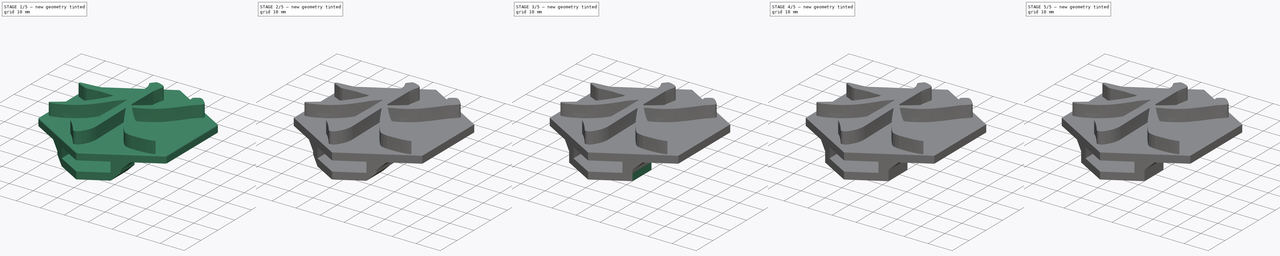
[diagram: build sequence overview — one tinted view per stage of 5, left to right]
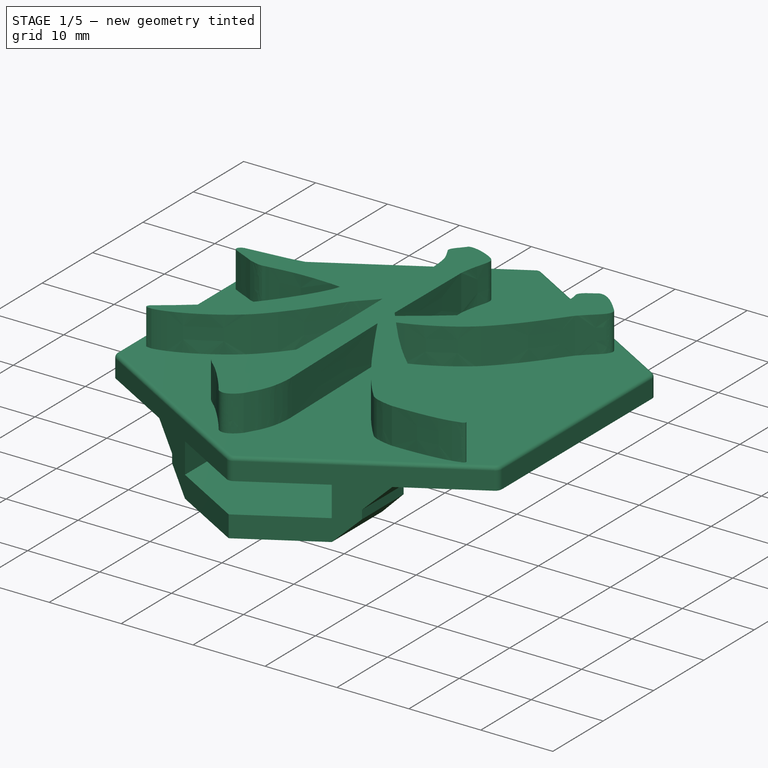
[diagram: stage 1 of 5 — iso view after this stage's code; geometry added in this stage tinted green]
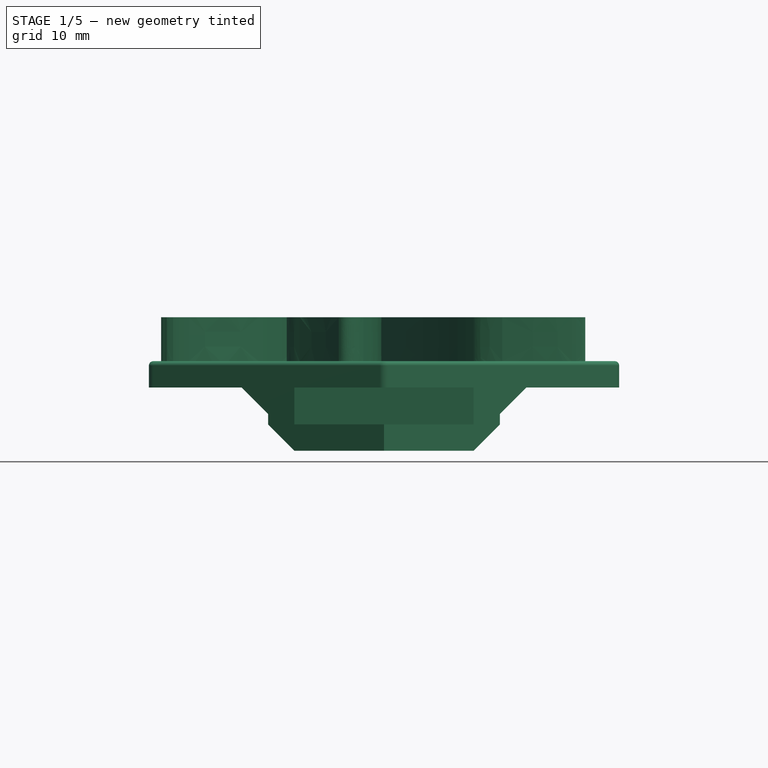
[diagram: stage 1 of 5 — front view after this stage's code; geometry added in this stage tinted green]
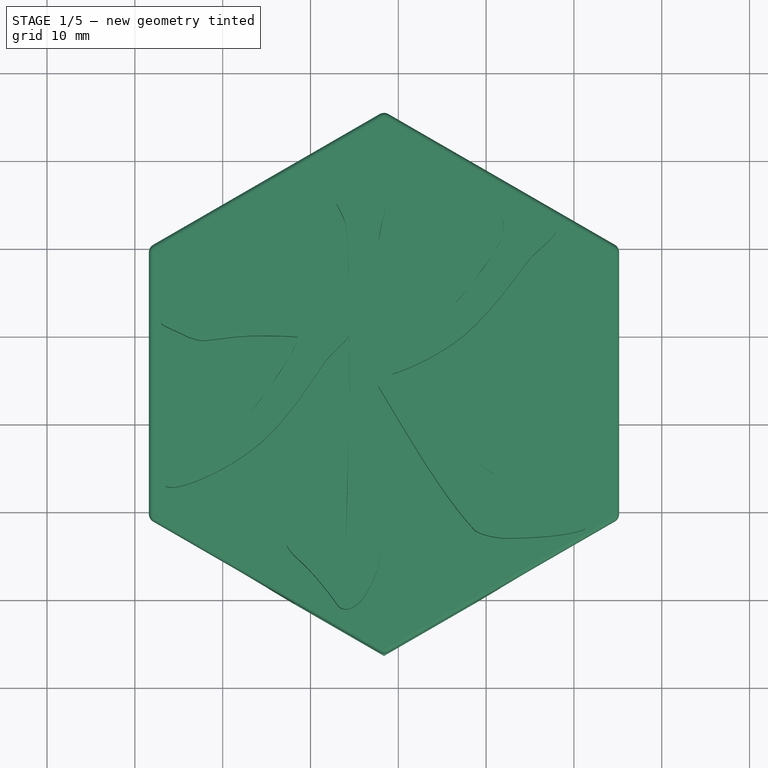
[diagram: stage 1 of 5 — top view after this stage's code; geometry added in this stage tinted green]
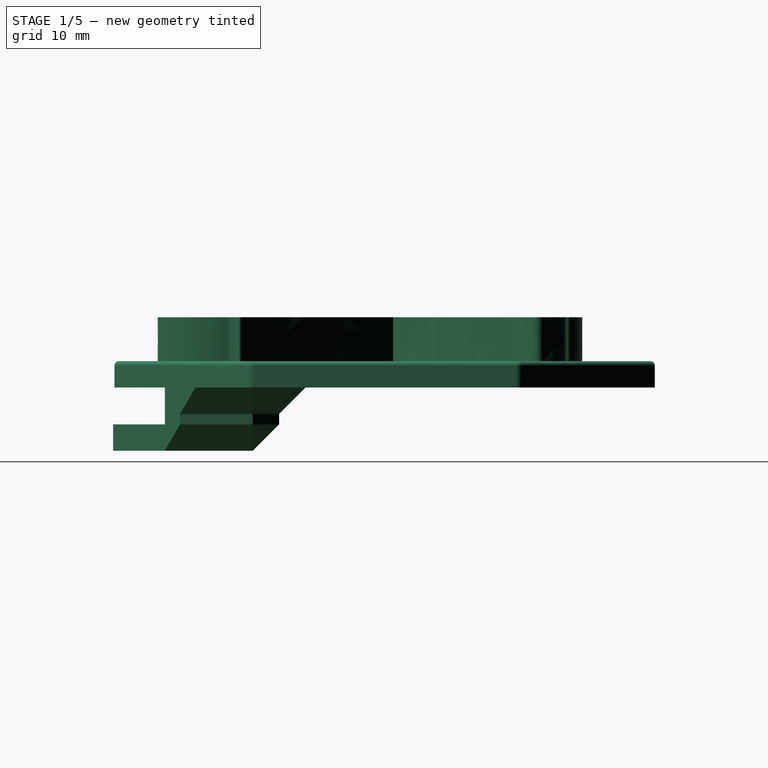
[diagram: stage 1 of 5 — right view after this stage's code; geometry added in this stage tinted green]
FCSTD DOCUMENT  (FreeCAD 0.16R6264 (Git))
Label: logo
License: All rights reserved
LicenseURL: http://en.wikipedia.org/wiki/All_rights_reserved
objects: Part::Feature×9, Part::Extrusion×6, PartDesign::Fillet×4, Sketcher::SketchObject×3, PartDesign::Pad×3, Part::MultiFuse×1, PartDesign::Chamfer×1
note: 30 computed .brp shape members not serialized (recipe doc carries the construction recipe); baked Part::Feature solids carry a one-line shape summary decoded from their .brp

FEATURE [Part::Feature] Pad003001  label="Pad004"
  shape: bbox 53.55 x 61.83 x 15.2 mm, 69 faces (baked)
FEATURE [PartDesign::Chamfer] Chamfer
  Base = -> Pad003001 [Edge66,Edge67,Edge68,Edge198,Edge193,Edge194,Edge195,Edge197]
  Size = 3
FEATURE [PartDesign::Fillet] Fillet
  Base = -> Chamfer [Edge34,Edge30,Edge26,Edge22,Edge42,Edge38]
  Radius = 0.5
FEATURE [PartDesign::Fillet] Fillet001
  Base = -> Fillet [Edge13,Edge52,Edge116,Edge28,Edge4,Edge1]
  Radius = 1
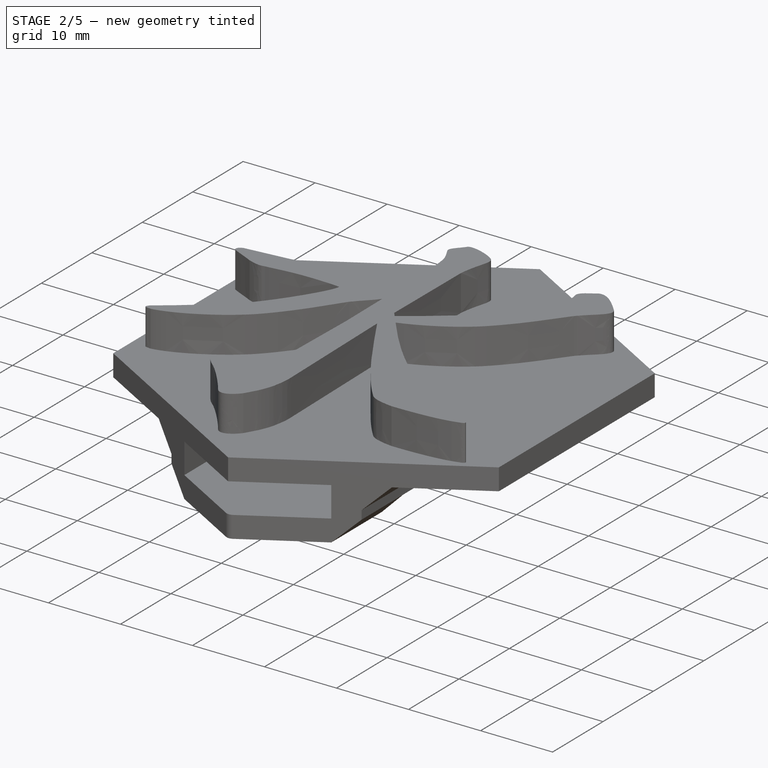
[diagram: stage 2 of 5 — iso view after this stage's code; geometry added in this stage tinted green]
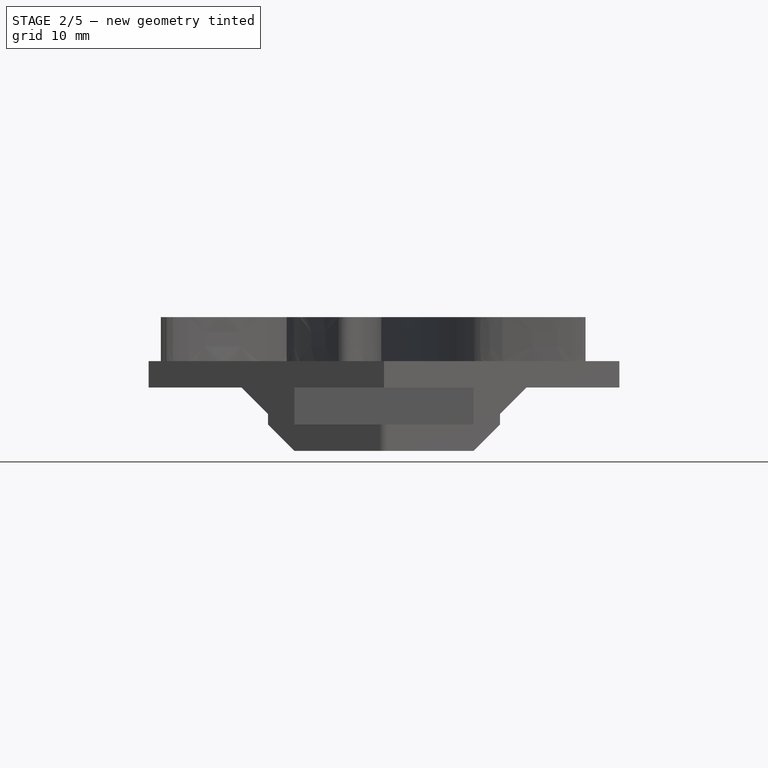
[diagram: stage 2 of 5 — front view after this stage's code; geometry added in this stage tinted green]
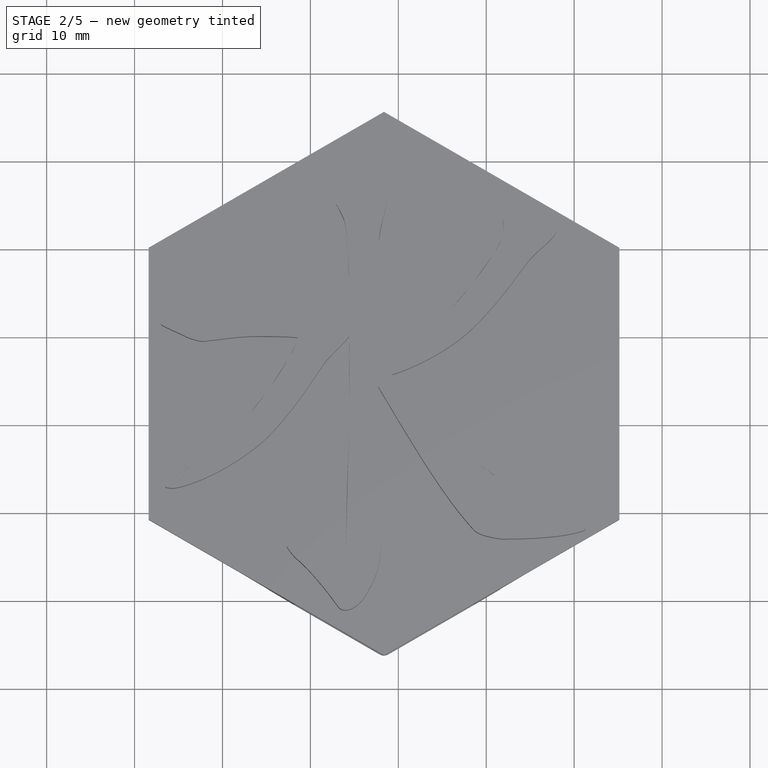
[diagram: stage 2 of 5 — top view after this stage's code; geometry added in this stage tinted green]
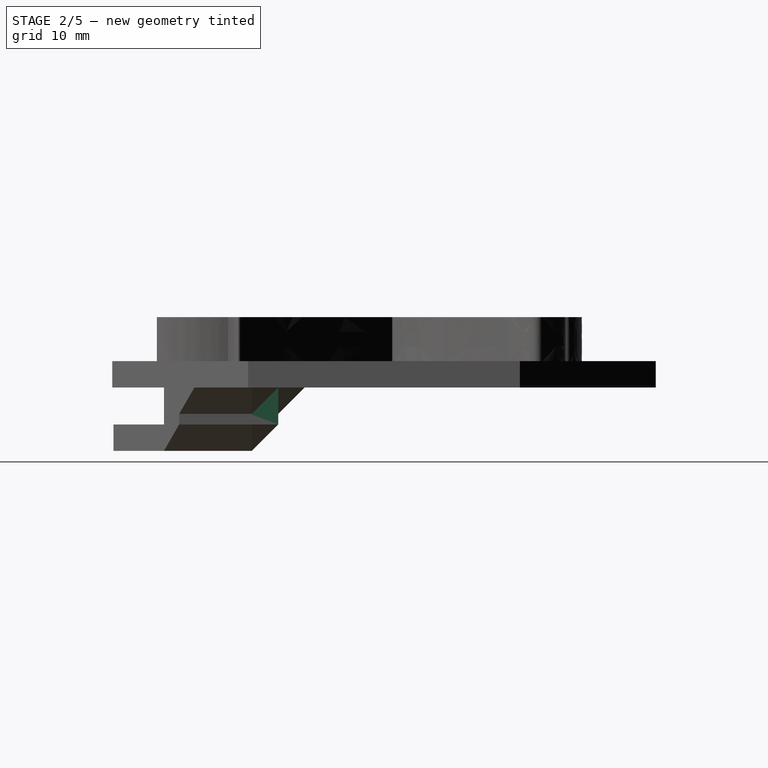
[diagram: stage 2 of 5 — right view after this stage's code; geometry added in this stage tinted green]
FEATURE [Part::Feature] Pad001
  shape: bbox 53.55 x 61.83 x 8 mm, 60 faces (baked)
FEATURE [Sketcher::SketchObject] Sketch001
  ExternalGeometry = -> [Pad001]
  Placement = pos=(0,0,-3) rot=(1,0,0;3.14159rad)
  Support = -> Pad001 [Face5]
  sketch-geometry (8):
    g0: LineSegment StartX=41.5707 StartY=48.7047 StartZ=0 EndX=38.5707 EndY=50.4367 EndZ=0
    g1: LineSegment StartX=38.5707 StartY=50.4367 StartZ=0 EndX=38.5707 EndY=40.4367 EndZ=0
    g2: LineSegment StartX=38.5707 StartY=40.4367 StartZ=0 EndX=18.1707 EndY=40.4367 EndZ=0
    g3: LineSegment StartX=18.1707 StartY=40.4367 StartZ=0 EndX=18.1707 EndY=50.4367 EndZ=0
    g4: LineSegment StartX=18.1707 StartY=50.4367 StartZ=0 EndX=15.1707 EndY=48.7047 EndZ=0
    g5: LineSegment StartX=15.1707 StartY=48.7047 StartZ=0 EndX=15.1707 EndY=37.4367 EndZ=0
    g6: LineSegment StartX=15.1707 StartY=37.4367 StartZ=0 EndX=41.5707 EndY=37.4367 EndZ=0
    g7: LineSegment StartX=41.5707 StartY=37.4367 StartZ=0 EndX=41.5707 EndY=48.7047 EndZ=0
  constraints (24):
    c: Coincident(g0,g1)
    c: Coincident(g1,g2)
    c: Horizontal(g2)
    c: Coincident(g2,g3)
    c: Coincident(g3,g4)
    c: Coincident(g4,g5)
    c: Coincident(g5,g6)
    c: Horizontal(g6)
    c: Coincident(g6,g7)
    c: Coincident(g7,g0)
    c: Vertical(g7)
    c: Vertical(g1)
    c: Vertical(g3)
    c: Vertical(g5)
    c: Distance(g2) = 20.4
    c: PointOnObject(g3,g-4)
    c: PointOnObject(g0,g-3)
    c: PointOnObject(g0,g-3)
    c: PointOnObject(g4,g-4)
    c: Equal(g3,g1)
    c: Equal(g5,g7)
    c: Distance(g2,g5) = 3
    c: Distance(g6,g2) = 3
    c: Distance(g3) = 10
FEATURE [PartDesign::Pad] Pad002
  Length = 4.2
  Length2 = 100
  Sketch = -> Sketch001
  Type = 0
FEATURE [PartDesign::Fillet] Fillet002
  Base = -> Fillet001 [Edge27]
  Radius = 0.5
FEATURE [PartDesign::Fillet] Fillet003
  Base = -> Fillet002 [Edge13]
  Radius = 1
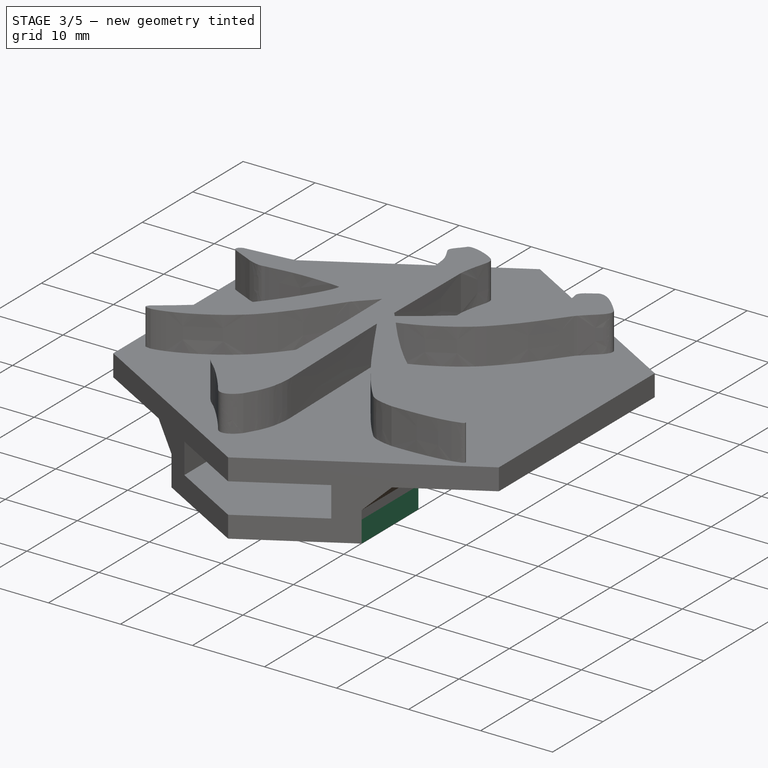
[diagram: stage 3 of 5 — iso view after this stage's code; geometry added in this stage tinted green]
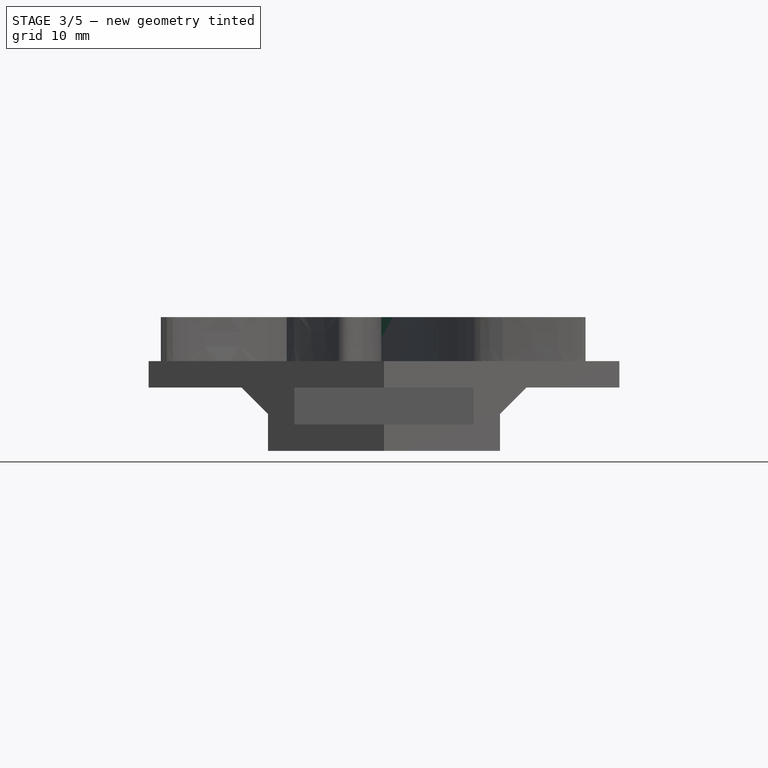
[diagram: stage 3 of 5 — front view after this stage's code; geometry added in this stage tinted green]
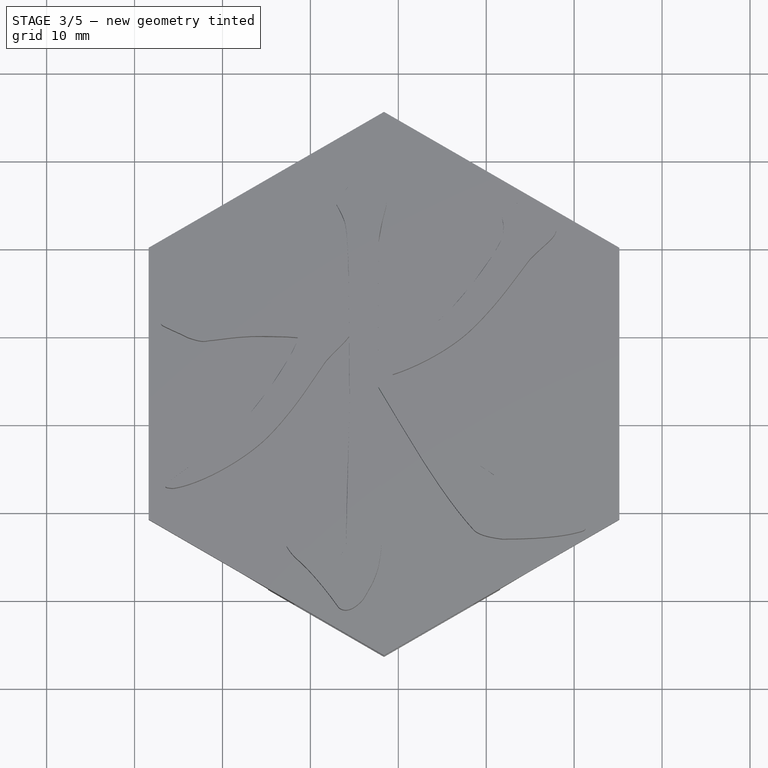
[diagram: stage 3 of 5 — top view after this stage's code; geometry added in this stage tinted green]
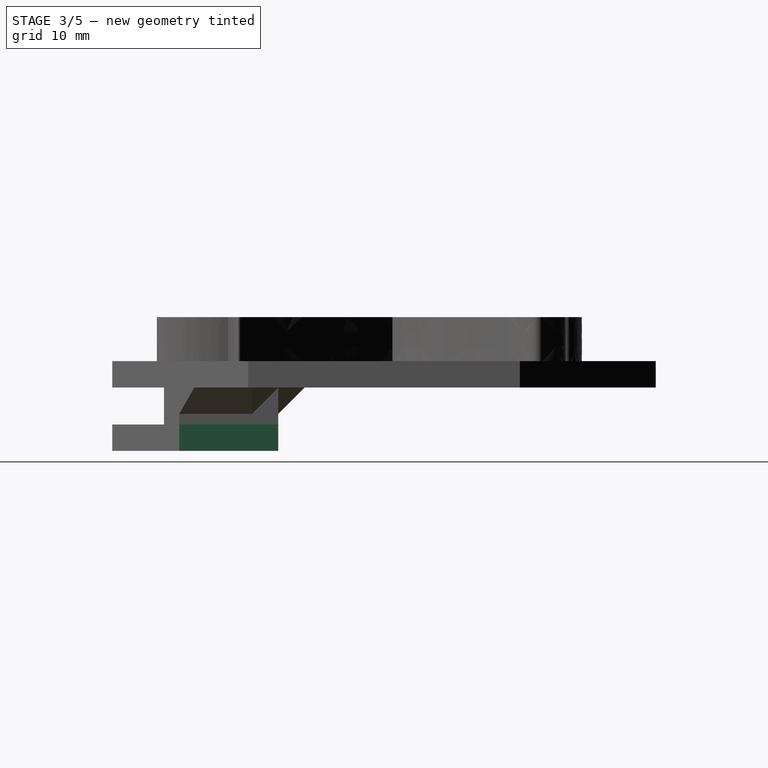
[diagram: stage 3 of 5 — right view after this stage's code; geometry added in this stage tinted green]
FEATURE [Part::Extrusion] Extrude005
  Base = -> Face005
  Dir = (0,0,5)
  Solid = false
FEATURE [Part::Feature] Fusion001
  shape: bbox 48.57 x 48.69 x 5 mm, 53 faces (baked)
FEATURE [Sketcher::SketchObject] Sketch
  Placement = pos=(0,0,0) rot=(1,0,0;3.14159rad)
  Support = -> Fusion001 [Face52]
  sketch-geometry (7):
    g0: LineSegment StartX=28.3707 StartY=-5.50507 StartZ=0 EndX=55.1442 EndY=9.95263 EndZ=0
    g1: LineSegment StartX=55.1442 StartY=9.95263 StartZ=0 EndX=55.1442 EndY=40.868 EndZ=0
    g2: LineSegment StartX=55.1442 StartY=40.868 StartZ=0 EndX=28.3707 EndY=56.3257 EndZ=0
    g3: LineSegment StartX=28.3707 StartY=56.3257 StartZ=0 EndX=1.5972 EndY=40.868 EndZ=0
    g4: LineSegment StartX=1.5972 StartY=40.868 StartZ=0 EndX=1.5972 EndY=9.95263 EndZ=0
    g5: LineSegment StartX=1.5972 StartY=9.95263 StartZ=0 EndX=28.3707 EndY=-5.50507 EndZ=0
    g6: Circle [constr] CenterX=28.3707 CenterY=25.4103 CenterZ=0 NormalX=0 NormalY=0 NormalZ=1 Radius=30.9154
  constraints (14):
    c: Coincident(g0,g1)
    c: Coincident(g1,g2)
    c: Coincident(g2,g3)
    c: Coincident(g3,g4)
    c: Coincident(g4,g5)
    c: Coincident(g5,g0)
    c: Equal(g0, g1-g5) x5
    c: PointOnObject(g0,g6)
    c: PointOnObject(g1,g6)
    c: PointOnObject(g2,g6)
    c: PointOnObject(g3,g6)
    c: PointOnObject(g4,g6)
    c: PointOnObject(g5,g6)
    c: Vertical(g4)
FEATURE [PartDesign::Pad] Pad
  Length = 3
  Length2 = 100
  Sketch = -> Sketch
  Type = 0
FEATURE [Sketcher::SketchObject] Sketch002
  ExternalGeometry = -> [Pad002]
  Placement = pos=(0,0,-7.2) rot=(1,0,0;3.14159rad)
  Support = -> Pad002 [Face67]
  sketch-geometry (5):
    g0: LineSegment StartX=28.3707 StartY=56.3257 StartZ=0 EndX=15.1707 EndY=48.7047 EndZ=0
    g1: LineSegment StartX=15.1707 StartY=48.7047 StartZ=0 EndX=15.1707 EndY=37.4367 EndZ=0
    g2: LineSegment StartX=15.1707 StartY=37.4367 StartZ=0 EndX=41.5707 EndY=37.4367 EndZ=0
    g3: LineSegment StartX=41.5707 StartY=37.4367 StartZ=0 EndX=41.5707 EndY=48.7047 EndZ=0
    g4: LineSegment StartX=41.5707 StartY=48.7047 StartZ=0 EndX=28.3707 EndY=56.3257 EndZ=0
  constraints (15):
    c: Coincident(g0,g1)
    c: Vertical(g1)
    c: Coincident(g1,g2)
    c: Horizontal(g2)
    c: Coincident(g2,g3)
    c: Vertical(g3)
    c: Coincident(g3,g4)
    c: Coincident(g0,g4)
    c: Coincident(g0,g-4)
    c: Coincident(g0,g-6)
    c: Coincident(g1,g-6)
    c: Coincident(g1,g-3)
    c: Coincident(g2,g-5)
    c: Coincident(g2,g-3)
    c: Coincident(g3,g-5)
FEATURE [PartDesign::Pad] Pad003
  Length = 3
  Length2 = 100
  Sketch = -> Sketch002
  Type = 0
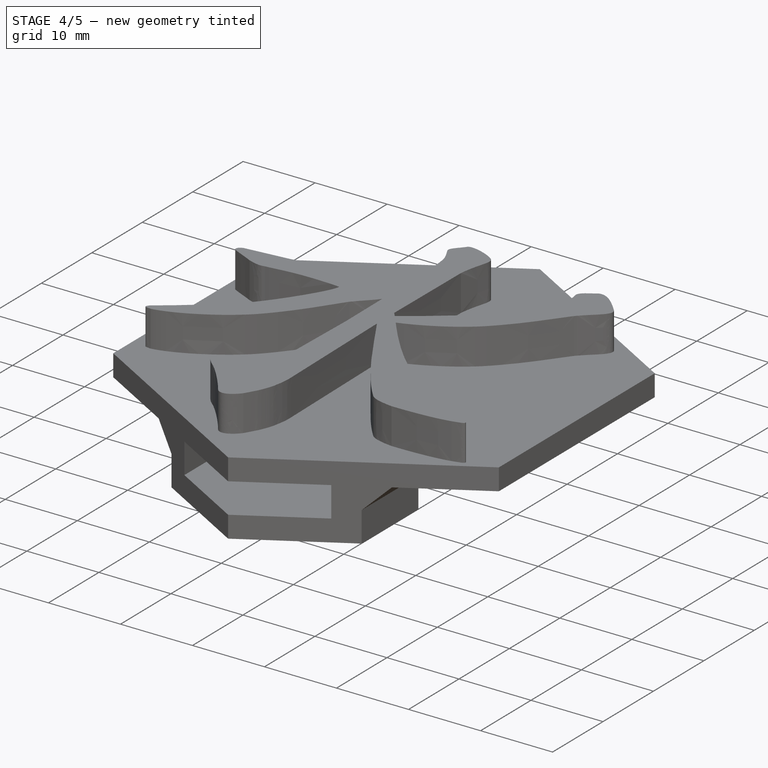
[diagram: stage 4 of 5 — iso view after this stage's code; geometry added in this stage tinted green]
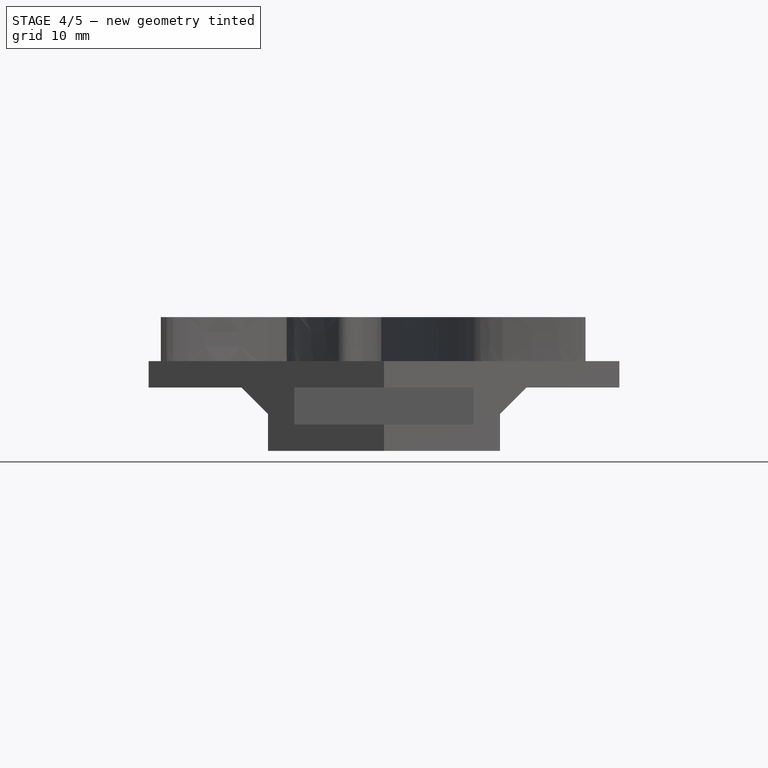
[diagram: stage 4 of 5 — front view after this stage's code; geometry added in this stage tinted green]
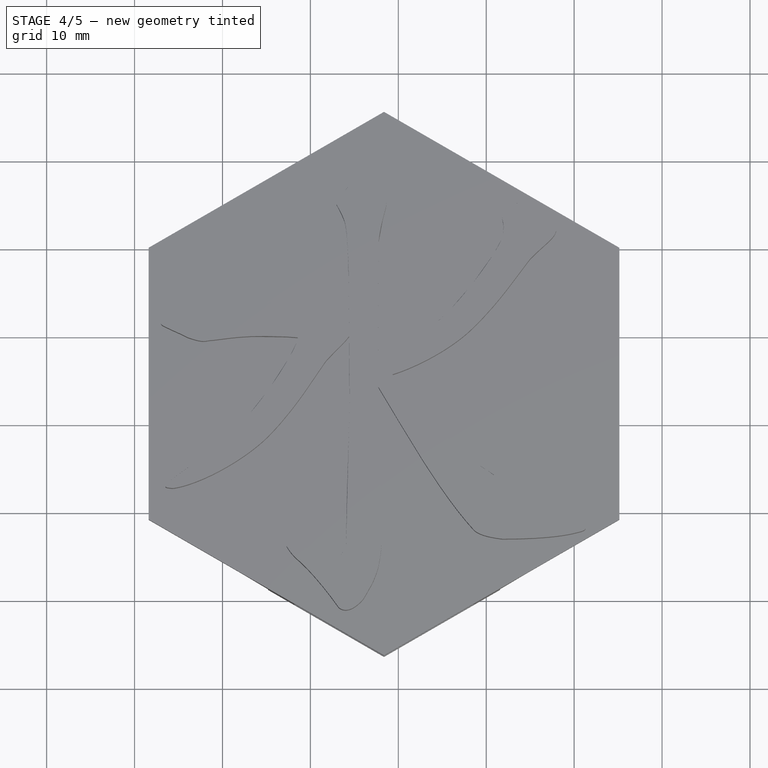
[diagram: stage 4 of 5 — top view after this stage's code; geometry added in this stage tinted green]
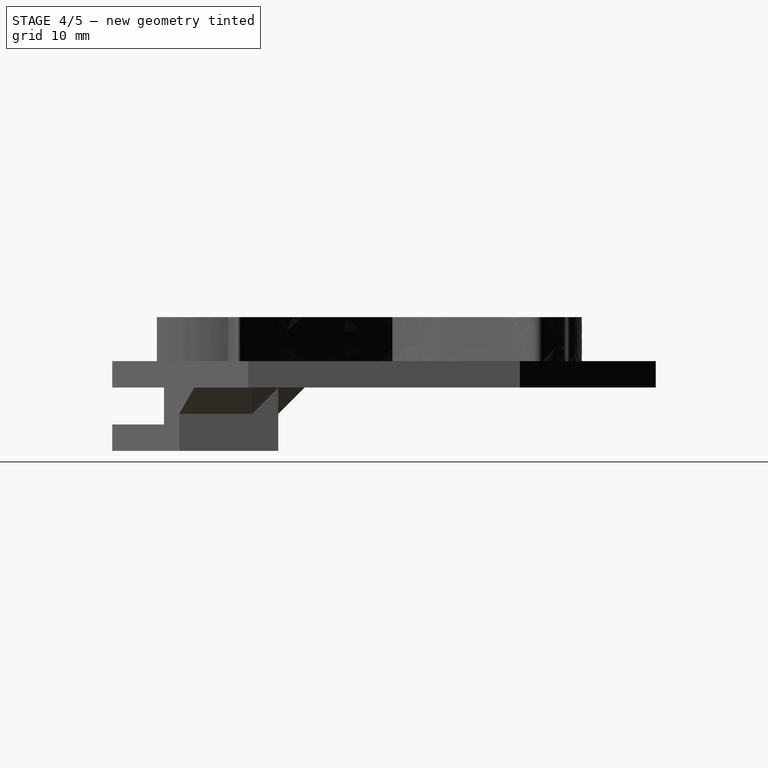
[diagram: stage 4 of 5 — right view after this stage's code; geometry added in this stage tinted green]
FEATURE [Part::Extrusion] Extrude002
  Base = -> Face002
  Dir = (0,0,5)
  Solid = false
FEATURE [Part::Extrusion] Extrude003
  Base = -> Face003
  Dir = (0,0,5)
  Solid = false
FEATURE [Part::Extrusion] Extrude004
  Base = -> Face004
  Dir = (0,0,5)
  Solid = false
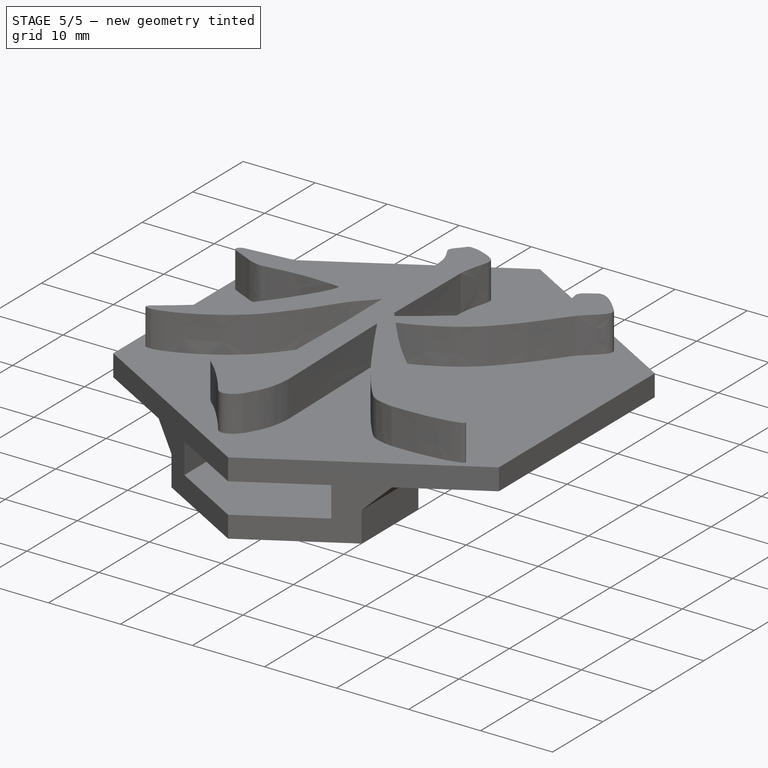
[diagram: stage 5 of 5 — iso view after this stage's code; geometry added in this stage tinted green]
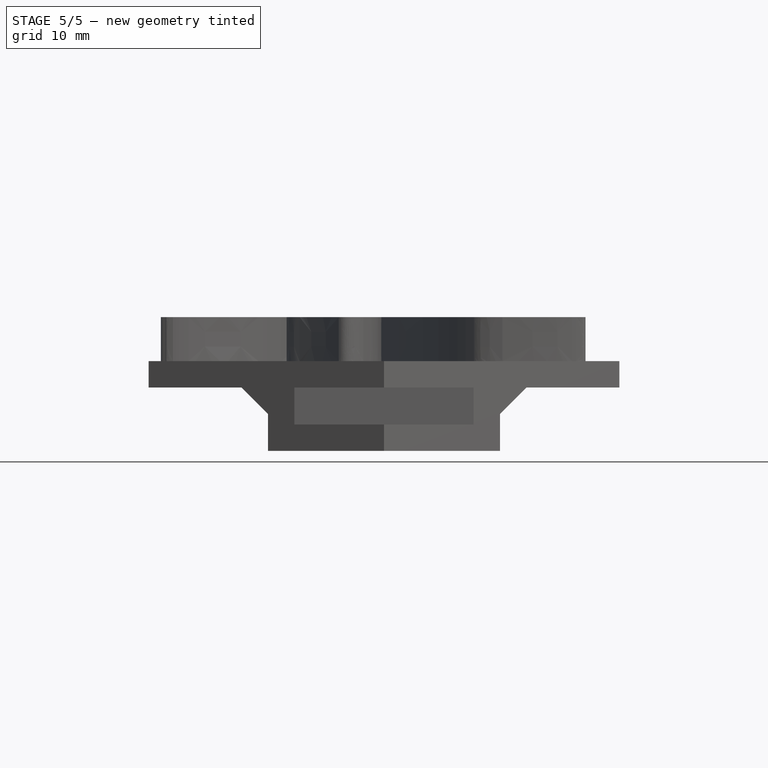
[diagram: stage 5 of 5 — front view after this stage's code; geometry added in this stage tinted green]
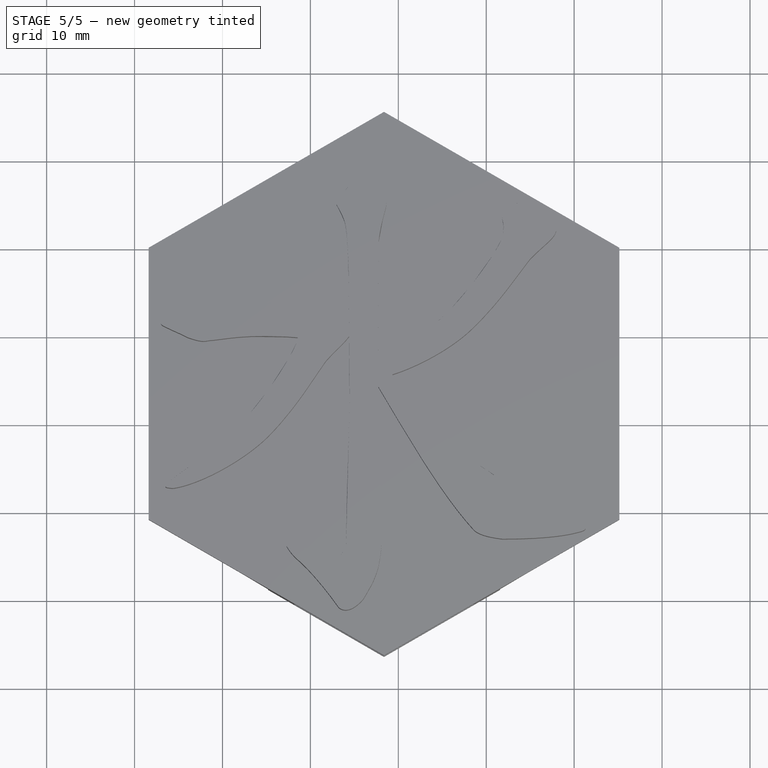
[diagram: stage 5 of 5 — top view after this stage's code; geometry added in this stage tinted green]
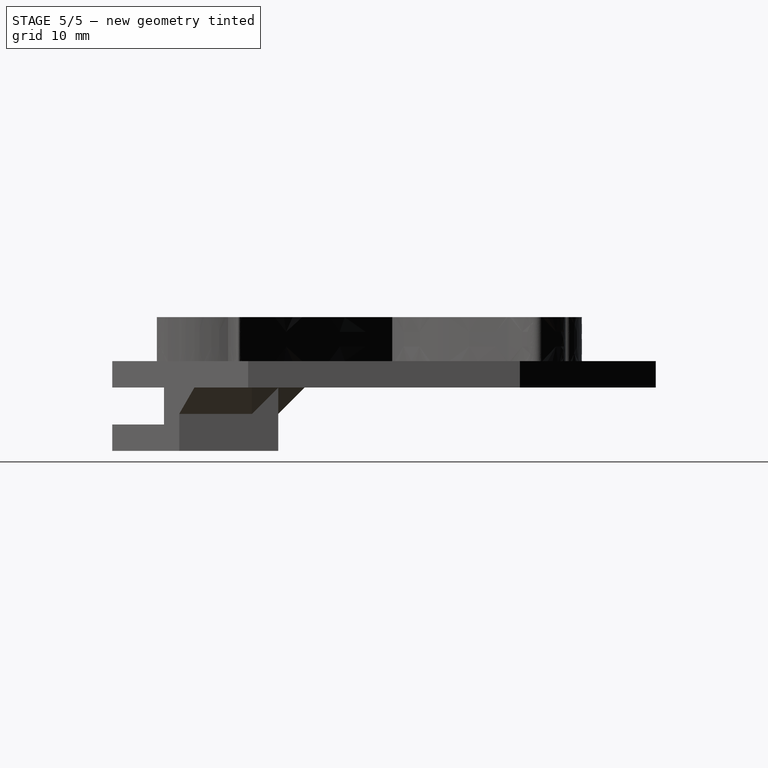
[diagram: stage 5 of 5 — right view after this stage's code; geometry added in this stage tinted green]
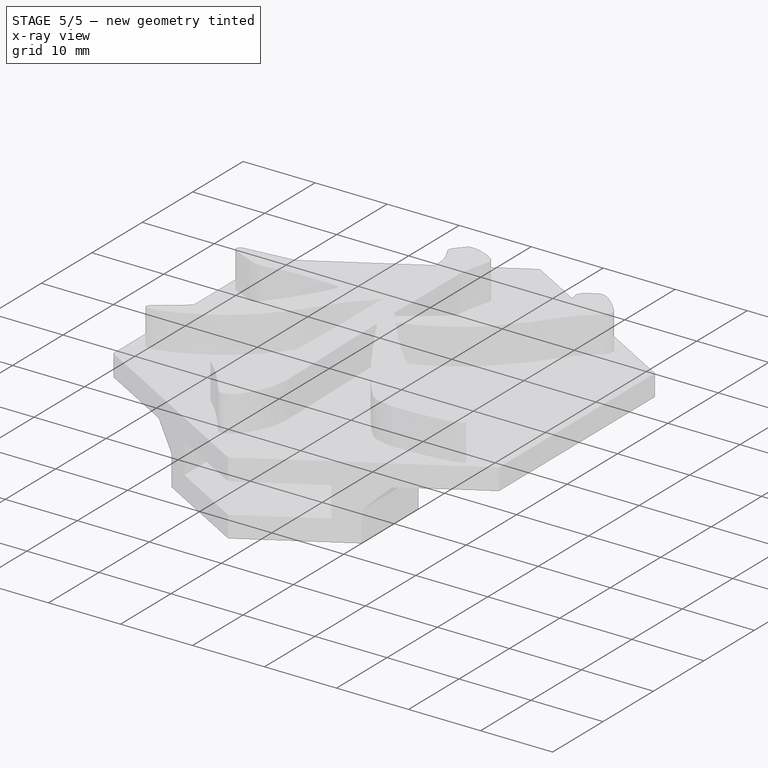
[diagram: stage 5 of 5 — x-ray composite at the iso view; earlier geometry ghosted, this stage's added geometry solid]
FEATURE [Part::Feature] Face
  shape: bbox 22.27 x 20.4 x 2e-07 mm, 1 faces, 0 solids (baked)
FEATURE [Part::Feature] Face001
  shape: bbox 6.057 x 46.34 x 2e-07 mm, 1 faces, 0 solids (baked)
FEATURE [Part::Feature] Face002
  shape: bbox 21.89 x 4.958 x 2e-07 mm, 1 faces, 0 solids (baked)
FEATURE [Part::Feature] Face003
  shape: bbox 21.47 x 21.18 x 2e-07 mm, 1 faces, 0 solids (baked)
FEATURE [Part::Feature] Face004
  shape: bbox 10.74 x 10.72 x 2e-07 mm, 1 faces, 0 solids (baked)
FEATURE [Part::Feature] Face005
  shape: bbox 25.92 x 22.54 x 2e-07 mm, 1 faces, 0 solids (baked)
FEATURE [Part::Extrusion] Extrude
  Base = -> Face
  Dir = (0,0,5)
  Solid = false
FEATURE [Part::Extrusion] Extrude001
  Base = -> Face001
  Dir = (0,0,5)
  Solid = false
FEATURE [Part::MultiFuse] Fusion
  Shapes = -> [Extrude005,Extrude001,Extrude003,Extrude002,Extrude,Extrude004]
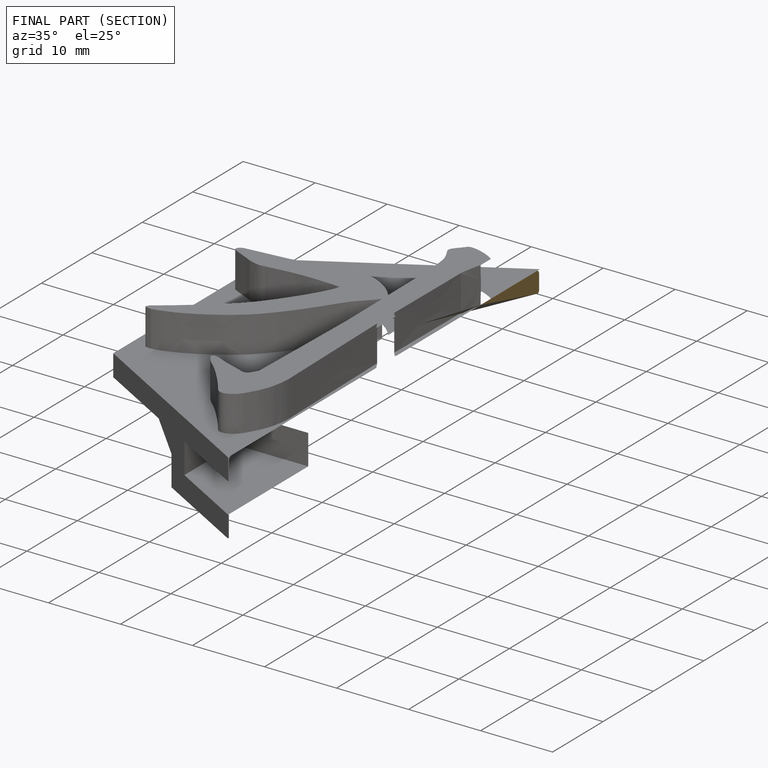
[diagram: finished part — half-section view (interior)]
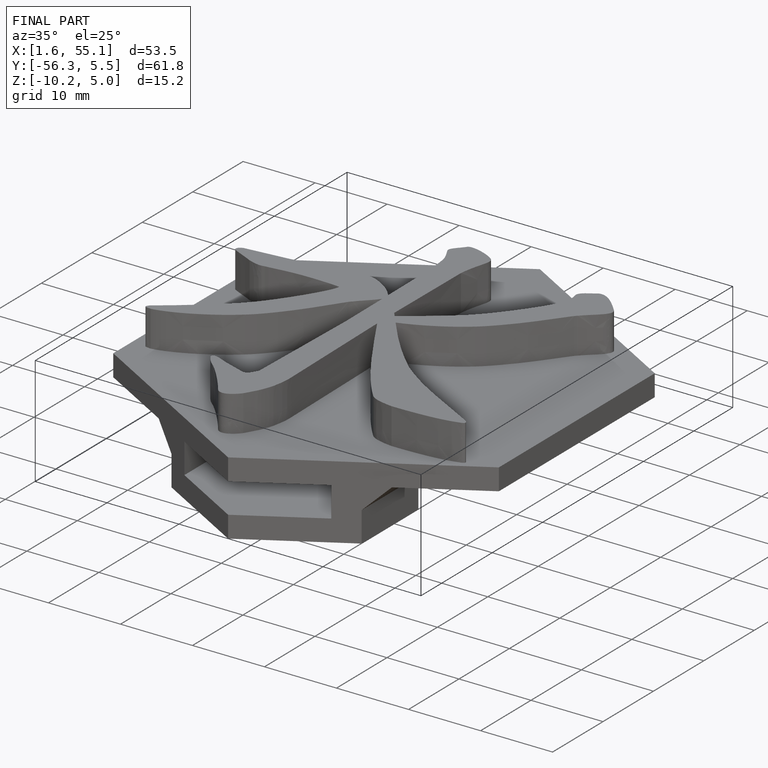
[diagram: finished part — iso view with bounding-box wireframe]
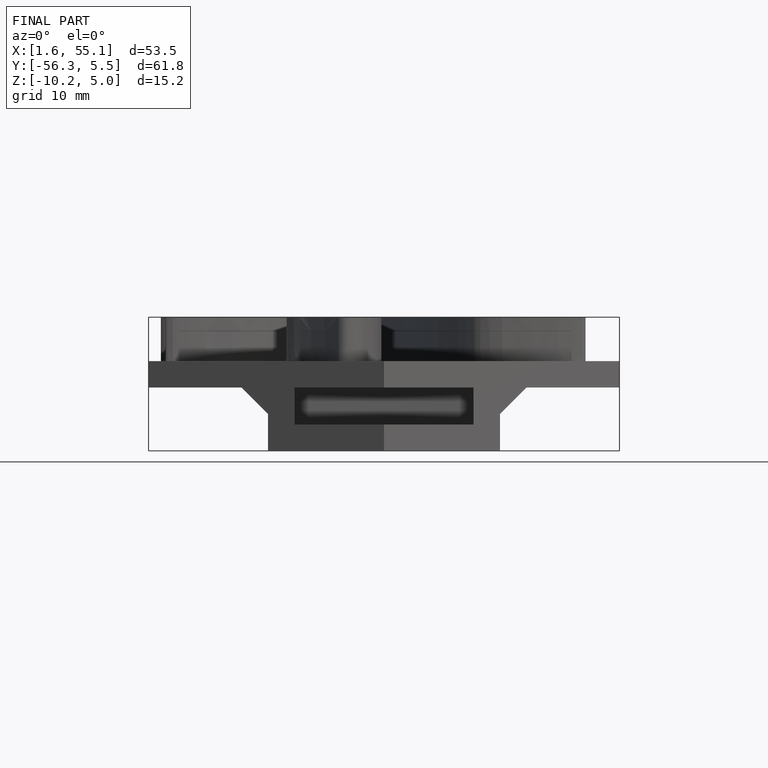
[diagram: finished part — front view with bounding-box wireframe]
